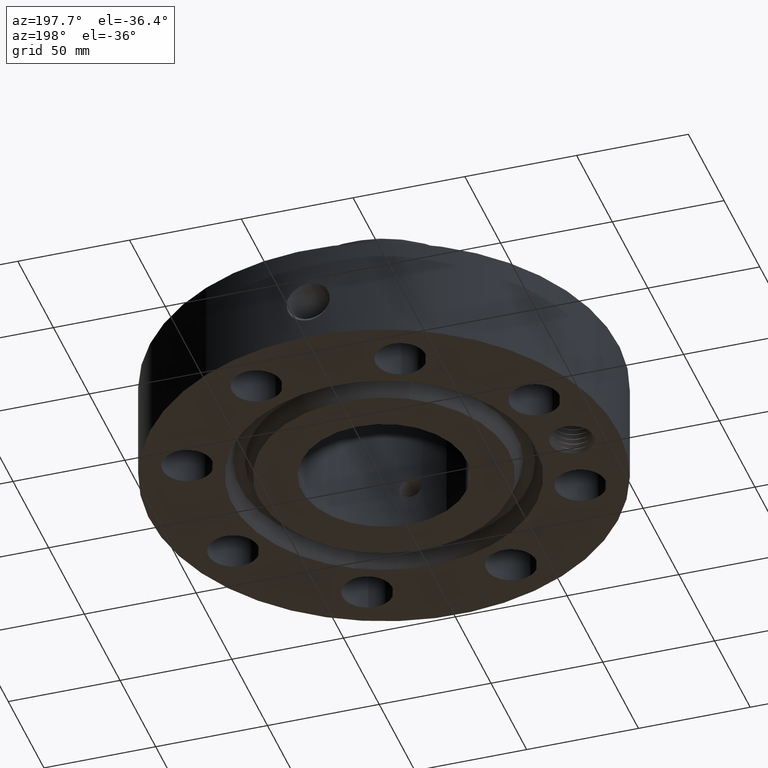
[diagram: clean part render]
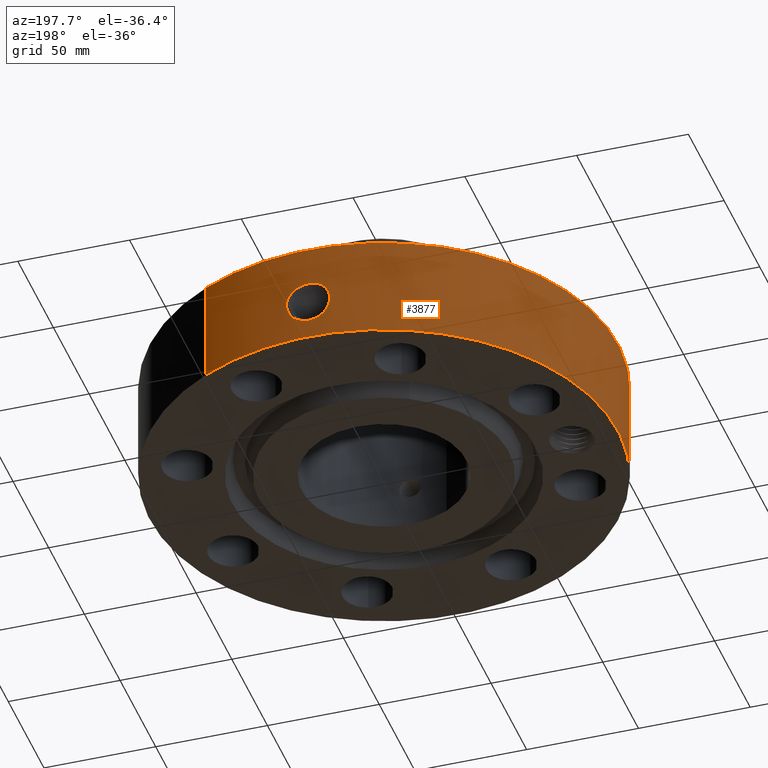
[diagram: same view with one face highlighted and labeled with its STEP entity id]
A machine part, auxiliary view. The second image highlights one B-rep face of the part: STEP entity #3877.
In plain terms, the highlighted cylindrical surface (partial cylindrical patch) has radius 104.775 mm, axis along (0, 0, -1).
Its self-contained STEP definition (entity closure, byte-faithful):
#2927=AXIS2_PLACEMENT_3D('Circle Axis2P3D',#2925,#2926,$) ;
#3735=AXIS2_PLACEMENT_3D('Cylinder Axis2P3D',#3732,#3733,#3734) ;
#3739=AXIS2_PLACEMENT_3D('Circle Axis2P3D',#3737,#3738,$) ;
#2920=CARTESIAN_POINT('Vertex',(1.97763034675,3.62002806781,1.81200000001)) ;
#2922=CARTESIAN_POINT('Vertex',(-1.97763034675,-3.62002806781,1.81200000001)) ;
#2925=CARTESIAN_POINT('Axis2P3D Location',(0.,0.,1.81200000001)) ;
#3732=CARTESIAN_POINT('Axis2P3D Location',(0.,0.,1.90600000001)) ;
#3737=CARTESIAN_POINT('Axis2P3D Location',(0.,0.,2.79741234551E-016)) ;
#3741=CARTESIAN_POINT('Vertex',(-1.97763034675,-3.62002806781,2.79741234551E-016)) ;
#3743=CARTESIAN_POINT('Vertex',(1.97763034675,3.62002806781,2.79741234551E-016)) ;
#3746=CARTESIAN_POINT('Line Origine',(-1.97763034675,-3.62002806781,0.906000000004)) ;
#3751=CARTESIAN_POINT('Line Origine',(1.97763034675,3.62002806781,0.906000000004)) ;
#3763=CARTESIAN_POINT('Control Point',(-0.0708237445676,4.12439195486,1.09694488906)) ;
#3764=CARTESIAN_POINT('Control Point',(-0.0477741582966,4.1247877606,1.10166279614)) ;
#3765=CARTESIAN_POINT('Control Point',(-0.0242486164637,4.12499584538,1.10407066233)) ;
#3766=CARTESIAN_POINT('Control Point',(-0.000717367610577,4.12499993764,1.10411849621)) ;
#3767=CARTESIAN_POINT('Vertex',(-0.0707906539045,4.12439279631,1.09695198078)) ;
#3769=CARTESIAN_POINT('Vertex',(-0.000717115501111,4.12499993768,1.10411850626)) ;
#3773=CARTESIAN_POINT('Control Point',(-0.0707905104107,4.12439252542,1.09695129721)) ;
#3774=CARTESIAN_POINT('Control Point',(-0.105532809474,4.12379621334,1.09076595761)) ;
#3775=CARTESIAN_POINT('Control Point',(-0.139240030295,4.12276503843,1.07859017267)) ;
#3776=CARTESIAN_POINT('Control Point',(-0.170106274733,4.12149109612,1.06141106894)) ;
#3777=CARTESIAN_POINT('Vertex',(-0.170106274733,4.12149109612,1.06141106894)) ;
#3781=CARTESIAN_POINT('Control Point',(-0.170106274733,4.12149109612,1.06141106894)) ;
#3782=CARTESIAN_POINT('Control Point',(-0.189944594202,4.1206723093,1.0503697337)) ;
#3783=CARTESIAN_POINT('Control Point',(-0.208623296466,4.11975704374,1.03728198267)) ;
#3784=CARTESIAN_POINT('Control Point',(-0.225824740993,4.11881392958,1.02251883288)) ;
#3785=CARTESIAN_POINT('Vertex',(-0.225824957479,4.11881412254,1.02251908233)) ;
#3789=CARTESIAN_POINT('Control Point',(-0.351866715743,4.10996530575,0.785464207791)) ;
#3790=CARTESIAN_POINT('Control Point',(-0.34497888264,4.11055499424,0.85398642544)) ;
#3791=CARTESIAN_POINT('Control Point',(-0.320314342746,4.11268400509,0.920774518579)) ;
#3792=CARTESIAN_POINT('Control Point',(-0.278761006636,4.11591176368,0.978540475679)) ;
#3793=CARTESIAN_POINT('Control Point',(-0.225808976488,4.11881479388,1.02253227726)) ;
#3794=CARTESIAN_POINT('Vertex',(-0.351866557636,4.1099653631,0.785465857635)) ;
#3798=CARTESIAN_POINT('Control Point',(-0.0285867396708,4.12490094408,0.341014416736)) ;
#3799=CARTESIAN_POINT('Control Point',(-0.0731508698246,4.12459210195,0.346762623172)) ;
#3800=CARTESIAN_POINT('Control Point',(-0.116605974606,4.12368909575,0.359610406952)) ;
#3801=CARTESIAN_POINT('Control Point',(-0.157313744087,4.1222622857,0.379187285582)) ;
#3802=CARTESIAN_POINT('Control Point',(-0.218412119355,4.11943105519,0.420865842625)) ;
#3803=CARTESIAN_POINT('Control Point',(-0.267086053021,4.11640755437,0.474664182728)) ;
#3804=CARTESIAN_POINT('Control Point',(-0.284316472172,4.1152344884,0.497667941505)) ;
#3805=CARTESIAN_POINT('Control Point',(-0.325710071636,4.11223072802,0.564664981655)) ;
#3806=CARTESIAN_POINT('Control Point',(-0.349728156273,4.11016859145,0.63919408656)) ;
#3807=CARTESIAN_POINT('Control Point',(-0.357709913861,4.1094520315,0.688220831802)) ;
#3808=CARTESIAN_POINT('Control Point',(-0.358385647066,4.10940720046,0.737417363088)) ;
#3809=CARTESIAN_POINT('Control Point',(-0.351866479648,4.10996532597,0.785465839276)) ;
#3810=CARTESIAN_POINT('Vertex',(-0.0285867396708,4.12490094408,0.341014416736)) ;
#3814=CARTESIAN_POINT('Control Point',(-0.0285867396708,4.12490094408,0.341014416736)) ;
#3815=CARTESIAN_POINT('Control Point',(-0.0190504160254,4.12496703352,0.340850653827)) ;
#3816=CARTESIAN_POINT('Control Point',(-0.00951372397921,4.12500000631,0.340970810994)) ;
#3817=CARTESIAN_POINT('Control Point',(2.72878353804E-006,4.12500000002,0.341374667804)) ;
#3818=CARTESIAN_POINT('Vertex',(2.72878353411E-006,4.12500000002,0.341374667804)) ;
#3822=CARTESIAN_POINT('Control Point',(0.195057006855,4.12038563295,0.392957545942)) ;
#3823=CARTESIAN_POINT('Control Point',(0.134929917473,4.12323201946,0.361663843687)) ;
#3824=CARTESIAN_POINT('Control Point',(0.0678694130279,4.12499995512,0.344254776972)) ;
#3825=CARTESIAN_POINT('Control Point',(2.72878353805E-006,4.12500000002,0.341374667804)) ;
#3826=CARTESIAN_POINT('Vertex',(0.195057006855,4.12038563295,0.392957545942)) ;
#3830=CARTESIAN_POINT('Control Point',(0.277741768351,4.11563901603,0.448820748194)) ;
#3831=CARTESIAN_POINT('Control Point',(0.252440295955,4.11734647279,0.42703734352)) ;
#3832=CARTESIAN_POINT('Control Point',(0.224590682221,4.11898752344,0.408328621406)) ;
#3833=CARTESIAN_POINT('Control Point',(0.195057006855,4.12038563295,0.392957545942)) ;
#3834=CARTESIAN_POINT('Vertex',(0.277741768351,4.11563901603,0.448820748194)) ;
#3838=CARTESIAN_POINT('Control Point',(0.27774176835,4.11563901603,0.448820748194)) ;
#3839=CARTESIAN_POINT('Control Point',(0.346084675606,4.11102693031,0.516500465002)) ;
#3840=CARTESIAN_POINT('Control Point',(0.392503238368,4.10632847898,0.605167340984)) ;
#3841=CARTESIAN_POINT('Control Point',(0.412343746779,4.10434301329,0.701847270896)) ;
#3842=CARTESIAN_POINT('Control Point',(0.406546638362,4.10491715275,0.797902554286)) ;
#3843=CARTESIAN_POINT('Vertex',(0.406546638362,4.10491715275,0.797902554286)) ;
#3847=CARTESIAN_POINT('Control Point',(0.406546638362,4.10491715275,0.797902554286)) ;
#3848=CARTESIAN_POINT('Control Point',(0.3966963107,4.10589271875,0.84992592968)) ;
#3849=CARTESIAN_POINT('Control Point',(0.37710779744,4.10780290794,0.89979807489)) ;
#3850=CARTESIAN_POINT('Control Point',(0.348680854773,4.11043683718,0.944880188299)) ;
#3851=CARTESIAN_POINT('Control Point',(0.272595117199,4.11655133052,1.02936559515)) ;
#3852=CARTESIAN_POINT('Control Point',(0.173676705181,4.12189830002,1.08163746444)) ;
#3853=CARTESIAN_POINT('Control Point',(0.116496619108,4.12398624619,1.09950776357)) ;
#3854=CARTESIAN_POINT('Control Point',(0.05783429934,4.12500036264,1.10698939408)) ;
#3855=CARTESIAN_POINT('Control Point',(-2.58579355065E-005,4.12499999994,1.10415298439)) ;
#3856=CARTESIAN_POINT('Vertex',(-2.58579355093E-005,4.12499999994,1.10415298439)) ;
#3860=CARTESIAN_POINT('Control Point',(-0.000717115488811,4.12499993768,1.10411850625)) ;
#3861=CARTESIAN_POINT('Control Point',(-0.00037150956031,4.12499999777,1.10413603992)) ;
#3862=CARTESIAN_POINT('Control Point',(-2.58579439154E-005,4.12499999994,1.10415298438)) ;
#2926=DIRECTION('Axis2P3D Direction',(0.,0.,-0.0393700787402)) ;
#3733=DIRECTION('Axis2P3D Direction',(0.,0.,-0.0393700787402)) ;
#3734=DIRECTION('Axis2P3D XDirection',(0.0188750212049,0.0345504945626,0.)) ;
#3738=DIRECTION('Axis2P3D Direction',(0.,0.,-0.0393700787402)) ;
#3747=DIRECTION('Vector Direction',(0.,0.,-0.0393700787402)) ;
#3752=DIRECTION('Vector Direction',(0.,0.,-0.0393700787402)) ;
#3748=VECTOR('Line Direction',#3747,0.0393700787402) ;
#3753=VECTOR('Line Direction',#3752,0.0393700787402) ;
#3757=ORIENTED_EDGE('',*,*,#3745,.F.) ;
#3758=ORIENTED_EDGE('',*,*,#3750,.T.) ;
#3759=ORIENTED_EDGE('',*,*,#2929,.T.) ;
#3760=ORIENTED_EDGE('',*,*,#3755,.F.) ;
#3865=ORIENTED_EDGE('',*,*,#3771,.F.) ;
#3866=ORIENTED_EDGE('',*,*,#3779,.T.) ;
#3867=ORIENTED_EDGE('',*,*,#3787,.T.) ;
#3868=ORIENTED_EDGE('',*,*,#3796,.F.) ;
#3869=ORIENTED_EDGE('',*,*,#3812,.F.) ;
#3870=ORIENTED_EDGE('',*,*,#3820,.T.) ;
#3871=ORIENTED_EDGE('',*,*,#3828,.F.) ;
#3872=ORIENTED_EDGE('',*,*,#3836,.F.) ;
#3873=ORIENTED_EDGE('',*,*,#3845,.T.) ;
#3874=ORIENTED_EDGE('',*,*,#3858,.T.) ;
#3875=ORIENTED_EDGE('',*,*,#3863,.F.) ;
#3876=FACE_BOUND('',#3864,.T.) ;
#3877=ADVANCED_FACE('PartBody',(#3761,#3876),#3736,.T.) ;
#3762=B_SPLINE_CURVE_WITH_KNOTS('',3,(#3763,#3764,#3765,#3766),.UNSPECIFIED.,.F.,.U.,(4,4),(3.91182776601,6.52241187763),.UNSPECIFIED.) ;
#3772=B_SPLINE_CURVE_WITH_KNOTS('',3,(#3773,#3774,#3775,#3776),.UNSPECIFIED.,.F.,.U.,(4,4),(0.,3.96502916235),.UNSPECIFIED.) ;
#3780=B_SPLINE_CURVE_WITH_KNOTS('',3,(#3781,#3782,#3783,#3784),.UNSPECIFIED.,.F.,.U.,(4,4),(0.,2.54839929056),.UNSPECIFIED.) ;
#3788=B_SPLINE_CURVE_WITH_KNOTS('',4,(#3789,#3790,#3791,#3792,#3793),.UNSPECIFIED.,.F.,.U.,(5,5),(14.8279619833,25.0224234722),.UNSPECIFIED.) ;
#3797=B_SPLINE_CURVE_WITH_KNOTS('',5,(#3798,#3799,#3800,#3801,#3802,#3803,#3804,#3805,#3806,#3807,#3808,#3809),.UNSPECIFIED.,.F.,.U.,(6,3,3,6),(0.,7.80986138272,12.9724774231,22.0575084507),.UNSPECIFIED.) ;
#3813=B_SPLINE_CURVE_WITH_KNOTS('',3,(#3814,#3815,#3816,#3817),.UNSPECIFIED.,.F.,.U.,(4,4),(0.,0.994580578724),.UNSPECIFIED.) ;
#3821=B_SPLINE_CURVE_WITH_KNOTS('',3,(#3822,#3823,#3824,#3825),.UNSPECIFIED.,.F.,.U.,(4,4),(0.,7.0928619918),.UNSPECIFIED.) ;
#3829=B_SPLINE_CURVE_WITH_KNOTS('',3,(#3830,#3831,#3832,#3833),.UNSPECIFIED.,.F.,.U.,(4,4),(0.,3.48392521475),.UNSPECIFIED.) ;
#3837=B_SPLINE_CURVE_WITH_KNOTS('',4,(#3838,#3839,#3840,#3841,#3842),.UNSPECIFIED.,.F.,.U.,(5,5),(0.,13.3803744915),.UNSPECIFIED.) ;
#3846=B_SPLINE_CURVE_WITH_KNOTS('',5,(#3847,#3848,#3849,#3850,#3851,#3852,#3853,#3854,#3855),.UNSPECIFIED.,.F.,.U.,(6,3,6),(0.,9.20582115839,20.0210814564),.UNSPECIFIED.) ;
#3859=B_SPLINE_CURVE_WITH_KNOTS('',2,(#3860,#3861,#3862),.UNSPECIFIED.,.F.,.U.,(3,3),(1.12442704957,1.15027082638),.UNSPECIFIED.) ;
#2928=CIRCLE('generated circle',#2927,4.12500000002) ;
#3740=CIRCLE('generated circle',#3739,4.12500000002) ;
#3736=CYLINDRICAL_SURFACE('generated cylinder',#3735,4.12500000002) ;
#2929=EDGE_CURVE('',#2923,#2921,#2928,.T.) ;
#3745=EDGE_CURVE('',#3742,#3744,#3740,.T.) ;
#3750=EDGE_CURVE('',#3742,#2923,#3749,.F.) ;
#3755=EDGE_CURVE('',#3744,#2921,#3754,.F.) ;
#3771=EDGE_CURVE('',#3768,#3770,#3762,.T.) ;
#3779=EDGE_CURVE('',#3768,#3778,#3772,.T.) ;
#3787=EDGE_CURVE('',#3778,#3786,#3780,.T.) ;
#3796=EDGE_CURVE('',#3795,#3786,#3788,.T.) ;
#3812=EDGE_CURVE('',#3811,#3795,#3797,.T.) ;
#3820=EDGE_CURVE('',#3811,#3819,#3813,.T.) ;
#3828=EDGE_CURVE('',#3827,#3819,#3821,.T.) ;
#3836=EDGE_CURVE('',#3835,#3827,#3829,.T.) ;
#3845=EDGE_CURVE('',#3835,#3844,#3837,.T.) ;
#3858=EDGE_CURVE('',#3844,#3857,#3846,.T.) ;
#3863=EDGE_CURVE('',#3770,#3857,#3859,.T.) ;
#3756=EDGE_LOOP('',(#3757,#3758,#3759,#3760)) ;
#3864=EDGE_LOOP('',(#3865,#3866,#3867,#3868,#3869,#3870,#3871,#3872,#3873,#3874,#3875)) ;
#3761=FACE_OUTER_BOUND('',#3756,.T.) ;
#3749=LINE('Line',#3746,#3748) ;
#3754=LINE('Line',#3751,#3753) ;
#2921=VERTEX_POINT('',#2920) ;
#2923=VERTEX_POINT('',#2922) ;
#3742=VERTEX_POINT('',#3741) ;
#3744=VERTEX_POINT('',#3743) ;
#3768=VERTEX_POINT('',#3767) ;
#3770=VERTEX_POINT('',#3769) ;
#3778=VERTEX_POINT('',#3777) ;
#3786=VERTEX_POINT('',#3785) ;
#3795=VERTEX_POINT('',#3794) ;
#3811=VERTEX_POINT('',#3810) ;
#3819=VERTEX_POINT('',#3818) ;
#3827=VERTEX_POINT('',#3826) ;
#3835=VERTEX_POINT('',#3834) ;
#3844=VERTEX_POINT('',#3843) ;
#3857=VERTEX_POINT('',#3856) ;